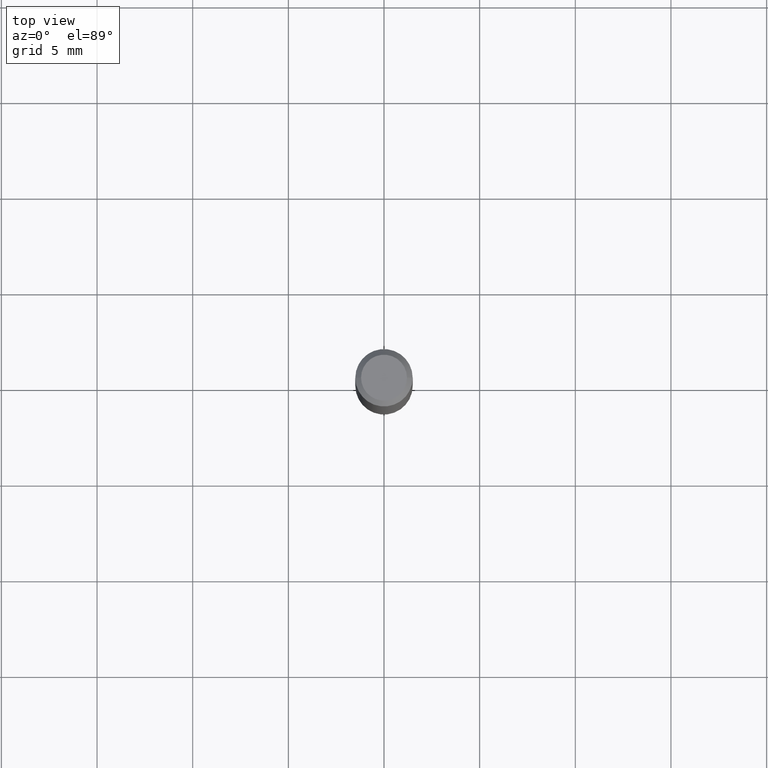
[diagram: clean part render]
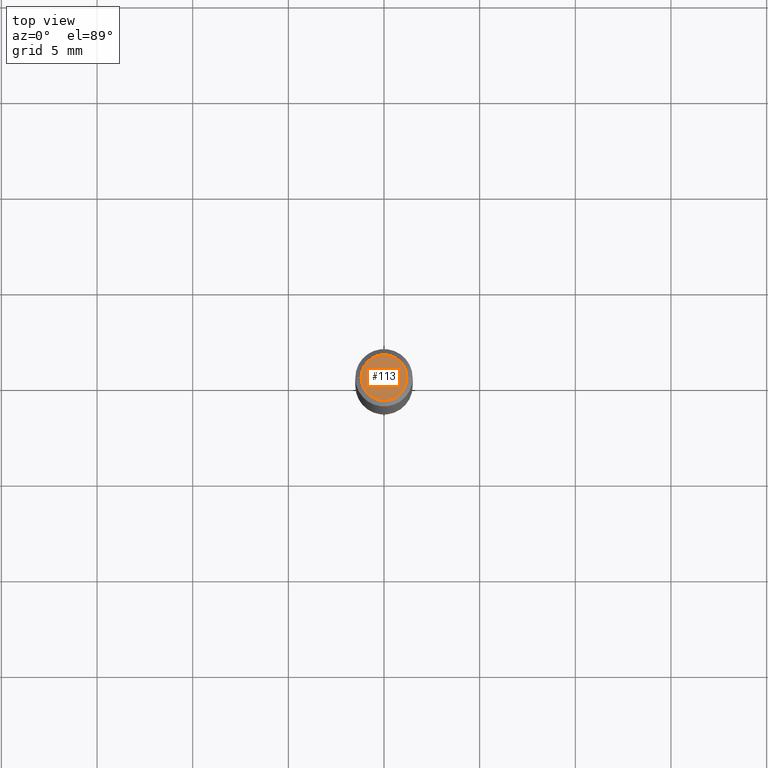
[diagram: same view with one face highlighted and labeled with its STEP entity id]
A machine part, top view. The second image highlights one B-rep face of the part: STEP entity #113.
In plain terms, the highlighted planar face has unit normal (0, -0, -1).
Its self-contained STEP definition (entity closure, byte-faithful):
#28 = DIRECTION ( 'NONE',  ( -1.000000000000000000, 6.982962677686265922E-15, -4.876176775795935793E-29 ) ) ;
#48 = CIRCLE ( 'NONE', #257, 0.04724000000000000421 ) ;
#55 = DIRECTION ( 'NONE',  ( -2.445468806185136597E-29, 3.491481338843145583E-15, 1.000000000000000000 ) ) ;
#63 = PLANE ( 'NONE',  #133 ) ;
#72 = CARTESIAN_POINT ( 'NONE',  ( 8.265746106709734507E-48, -1.180129479067563789E-33, -3.380025165646692144E-19 ) ) ;
#91 = CARTESIAN_POINT ( 'NONE',  ( 8.265746106709734507E-48, -1.180129479067563789E-33, -3.380025165646692144E-19 ) ) ;
#93 = EDGE_LOOP ( 'NONE', ( #388, #484 ) ) ;
#108 = CARTESIAN_POINT ( 'NONE',  ( -0.04724000000000000421, 3.504923541997677355E-16, -3.380025165670481712E-19 ) ) ;
#113 = ADVANCED_FACE ( 'NONE', ( #178 ), #63, .F. ) ;
#133 = AXIS2_PLACEMENT_3D ( 'NONE', #139, #252, #28 ) ;
#139 = CARTESIAN_POINT ( 'NONE',  ( 4.132873053354867254E-48, -5.900647395337818946E-34, -1.690012582823346072E-19 ) ) ;
#153 = DIRECTION ( 'NONE',  ( -2.445468806185136597E-29, 3.491481338843145583E-15, 1.000000000000000000 ) ) ;
#178 = FACE_OUTER_BOUND ( 'NONE', #93, .T. ) ;
#204 = EDGE_CURVE ( 'NONE', #316, #465, #48, .T. ) ;
#210 = DIRECTION ( 'NONE',  ( 1.000000000000000000, -6.982962677686266711E-15, 4.876185090822587894E-29 ) ) ;
#252 = DIRECTION ( 'NONE',  ( 2.438088387897960049E-29, -3.491481338843145188E-15, -1.000000000000000000 ) ) ;
#257 = AXIS2_PLACEMENT_3D ( 'NONE', #72, #153, #304 ) ;
#267 = CARTESIAN_POINT ( 'NONE',  ( 0.04724000000000000421, -3.852183633974369345E-16, -3.380025165621689721E-19 ) ) ;
#304 = DIRECTION ( 'NONE',  ( 1.000000000000000000, -6.982962677686266711E-15, 4.876185090822587894E-29 ) ) ;
#316 = VERTEX_POINT ( 'NONE', #108 ) ;
#323 = CIRCLE ( 'NONE', #424, 0.04724000000000000421 ) ;
#369 = EDGE_CURVE ( 'NONE', #465, #316, #323, .T. ) ;
#388 = ORIENTED_EDGE ( 'NONE', *, *, #204, .T. ) ;
#424 = AXIS2_PLACEMENT_3D ( 'NONE', #91, #55, #210 ) ;
#465 = VERTEX_POINT ( 'NONE', #267 ) ;
#484 = ORIENTED_EDGE ( 'NONE', *, *, #369, .T. ) ;